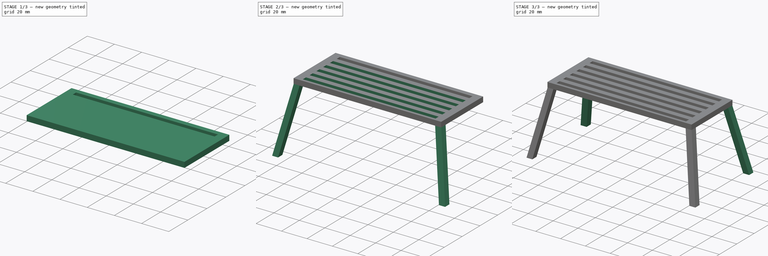
[diagram: build sequence overview — one tinted view per stage of 3, left to right]
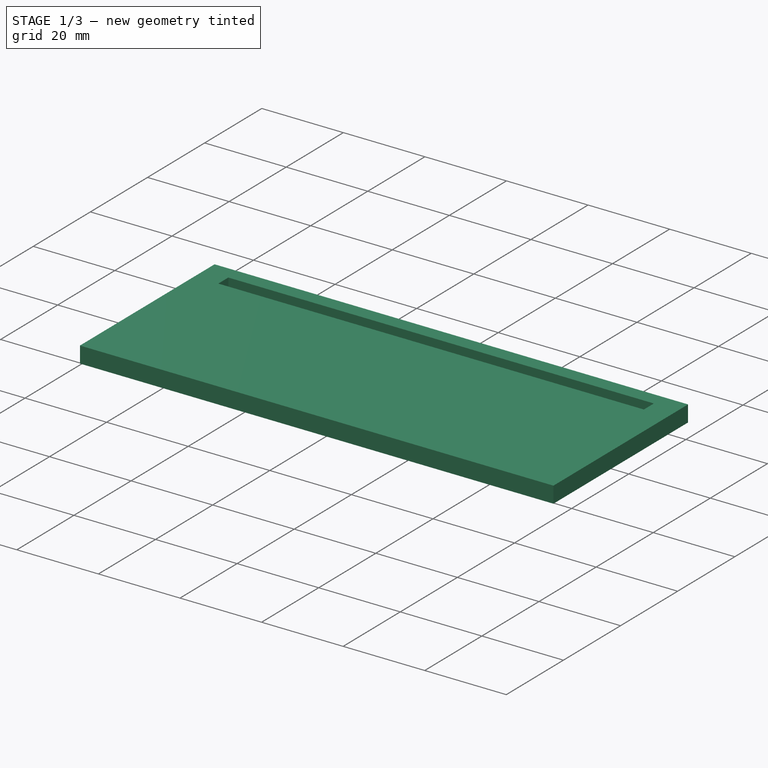
[diagram: stage 1 of 3 — iso view after this stage's code; geometry added in this stage tinted green]
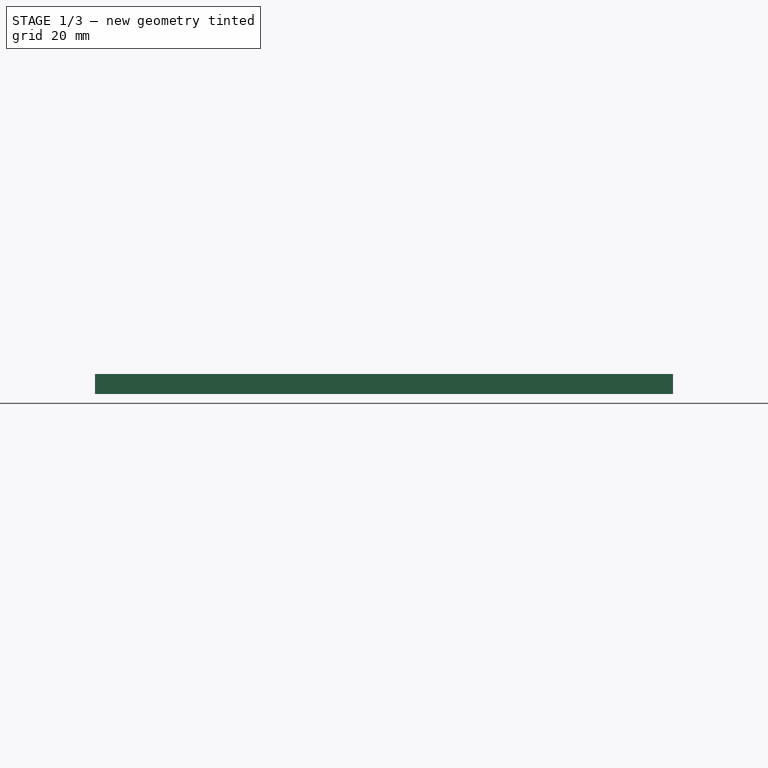
[diagram: stage 1 of 3 — front view after this stage's code; geometry added in this stage tinted green]
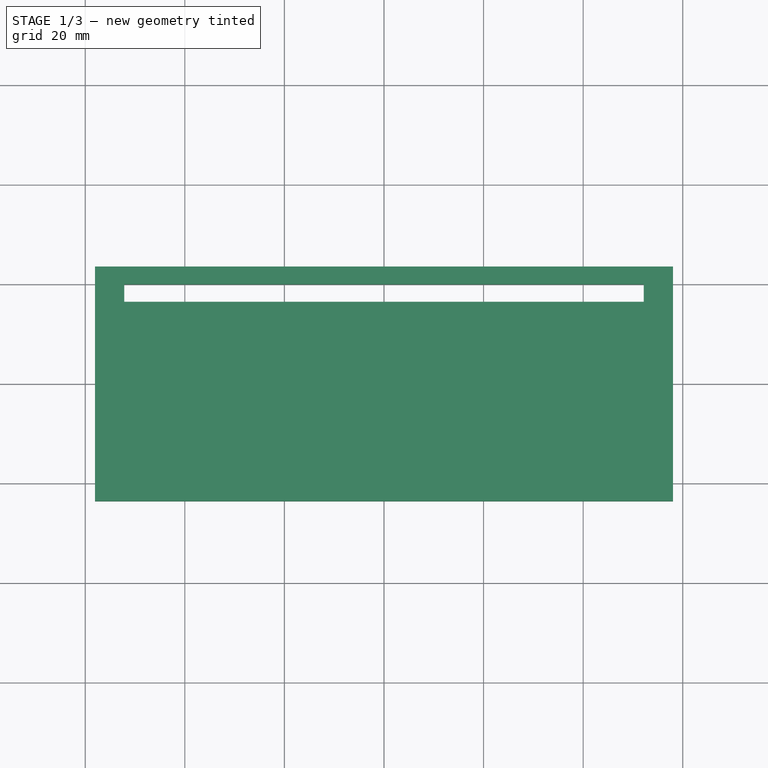
[diagram: stage 1 of 3 — top view after this stage's code; geometry added in this stage tinted green]
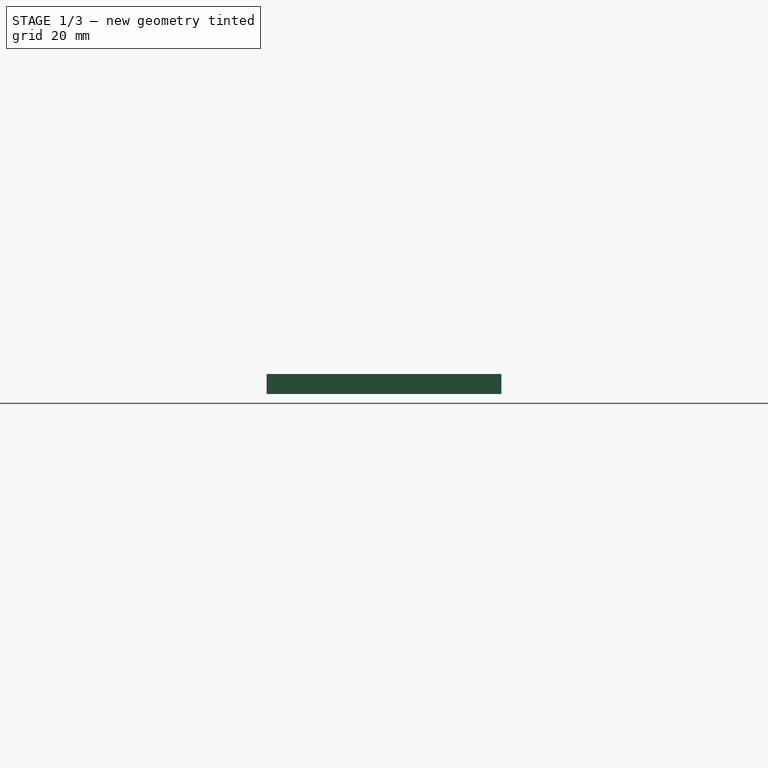
[diagram: stage 1 of 3 — right view after this stage's code; geometry added in this stage tinted green]
FCSTD DOCUMENT  (FreeCAD 0.21R33771 (Git))
Label: skamejka
License: All rights reserved
LicenseURL: https://en.wikipedia.org/wiki/All_rights_reserved
objects: Sketcher::SketchObject×10, PartDesign::AdditiveLoft×4, PartDesign::Pad×1, PartDesign::Pocket×1, PartDesign::LinearPattern×1, PartDesign::Body×1
note: 24 computed .brp shape members not serialized (recipe doc carries the construction recipe); baked Part::Feature solids carry a one-line shape summary decoded from their .brp

FEATURE [Sketcher::SketchObject] Sketch
  FullyConstrained = false
  MapMode = 5
  Support = -> [XY_Plane]
  sketch-geometry (5):
    g0: LineSegment StartX=-58.0414 StartY=-23.5669 StartZ=0 EndX=-58.0414 EndY=23.5669 EndZ=0
    g1: LineSegment StartX=-58.0414 StartY=23.5669 StartZ=0 EndX=58.0414 EndY=23.5669 EndZ=0
    g2: LineSegment StartX=58.0414 StartY=23.5669 StartZ=0 EndX=58.0414 EndY=-23.5669 EndZ=0
    g3: LineSegment StartX=58.0414 StartY=-23.5669 StartZ=0 EndX=-58.0414 EndY=-23.5669 EndZ=0
    g4: GeomPoint X=0 Y=0 Z=0
  constraints (10):
    c: Coincident(g0,g1)
    c: Coincident(g1,g2)
    c: Coincident(g2,g3)
    c: Coincident(g3,g0)
    c: Horizontal(g1)
    c: Horizontal(g3)
    c: Vertical(g0)
    c: Vertical(g2)
    c: Symmetric(g1,g0,g4)
    c: Coincident(g4,g-1)
FEATURE [PartDesign::Pad] Pad
  Direction = (0,0,1)
  Length = 4
  Length2 = 10
  Profile = -> Sketch
  ReferenceAxis = -> Sketch [N_Axis]
  Type = 0
FEATURE [Sketcher::SketchObject] Sketch001
  FullyConstrained = false
  MapMode = 5
  Placement = pos=(0,0,4) rot=(0,0,1;0rad)
  Support = -> [Pad]
  sketch-geometry (5):
    g0: LineSegment StartX=-52.1679 StartY=19.9975 StartZ=0 EndX=-52.1679 EndY=16.4943 EndZ=0
    g1: LineSegment StartX=-52.1679 StartY=16.4943 StartZ=0 EndX=52.1679 EndY=16.4943 EndZ=0
    g2: LineSegment StartX=52.1679 StartY=16.4943 StartZ=0 EndX=52.1679 EndY=19.9975 EndZ=0
    g3: LineSegment StartX=52.1679 StartY=19.9975 StartZ=0 EndX=-52.1679 EndY=19.9975 EndZ=0
    g4: GeomPoint X=0 Y=18.2459 Z=0
  constraints (10):
    c: Coincident(g0,g1)
    c: Coincident(g1,g2)
    c: Coincident(g2,g3)
    c: Coincident(g3,g0)
    c: Horizontal(g1)
    c: Horizontal(g3)
    c: Vertical(g0)
    c: Vertical(g2)
    c: Symmetric(g1,g0,g4)
    c: PointOnObject(g4,g-2)
FEATURE [PartDesign::Pocket] Pocket
  BaseFeature = -> Pad
  Direction = (0,0,-1)
  Length = 9
  Length2 = 5
  Profile = -> Sketch001
  ReferenceAxis = -> Sketch001 [N_Axis]
  Type = 0
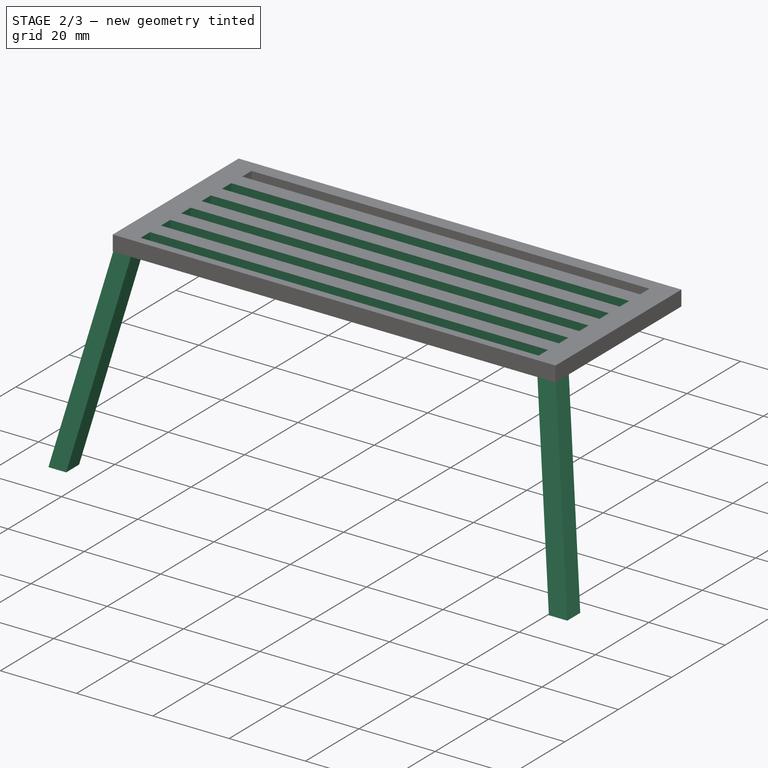
[diagram: stage 2 of 3 — iso view after this stage's code; geometry added in this stage tinted green]
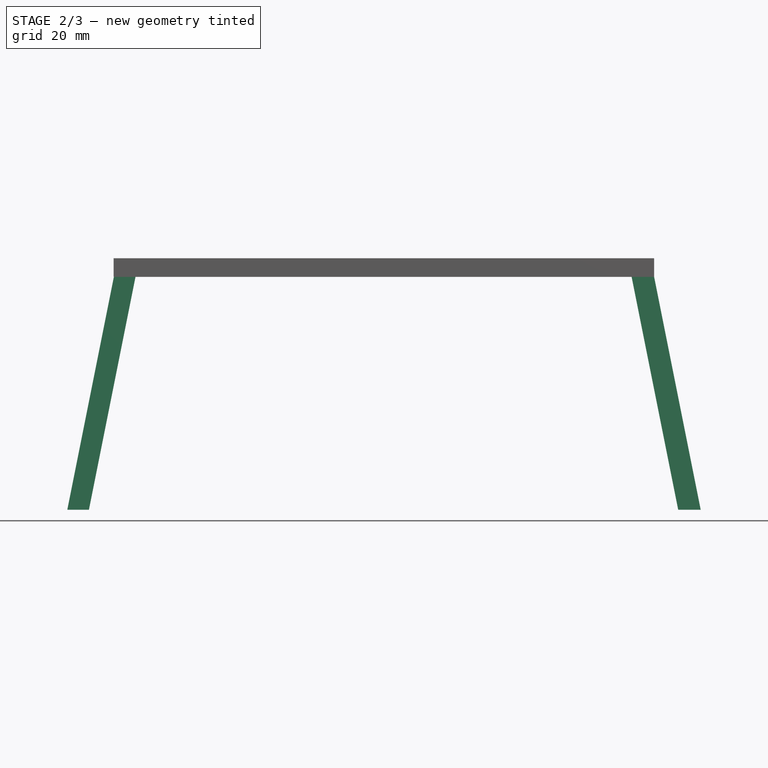
[diagram: stage 2 of 3 — front view after this stage's code; geometry added in this stage tinted green]
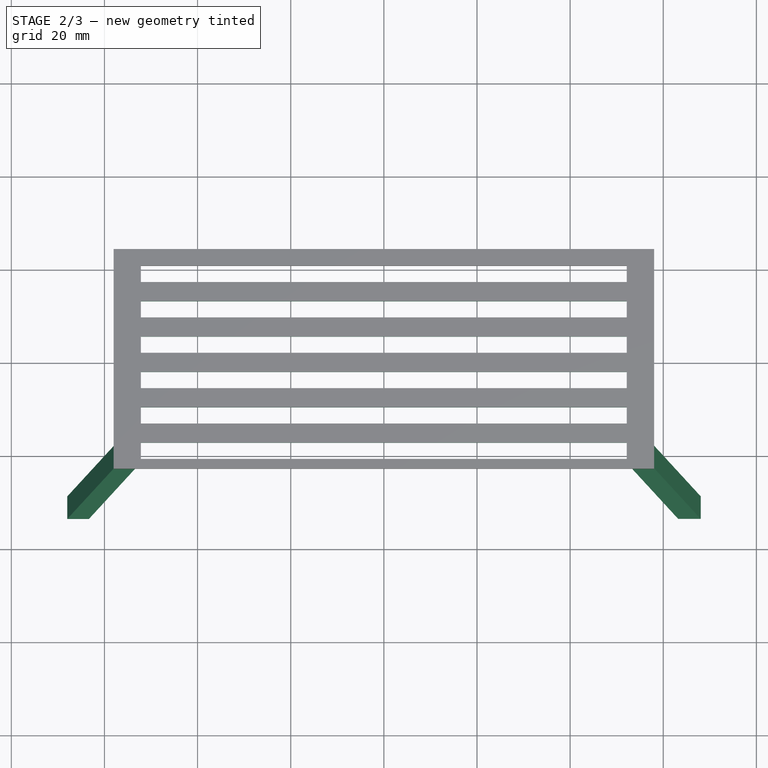
[diagram: stage 2 of 3 — top view after this stage's code; geometry added in this stage tinted green]
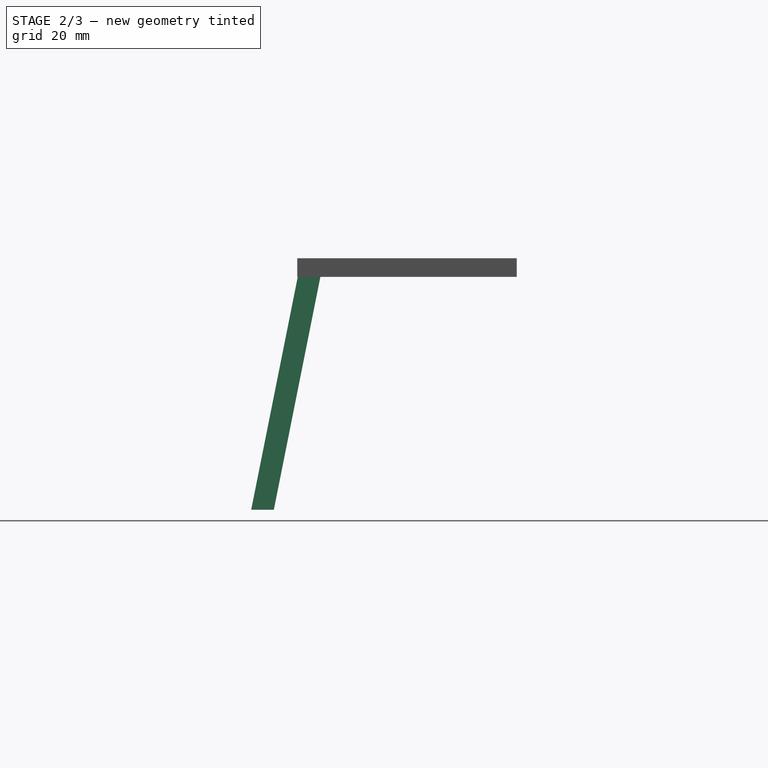
[diagram: stage 2 of 3 — right view after this stage's code; geometry added in this stage tinted green]
FEATURE [PartDesign::LinearPattern] LinearPattern
  BaseFeature = -> Pocket
  Direction = -> Y_Axis
  Length = 38
  Occurrences = 6
  Originals = -> [Pocket]
  Reversed = true
FEATURE [Sketcher::SketchObject] Sketch002
  FullyConstrained = false
  MapMode = 5
  Placement = pos=(0,0,0) rot=(1,0,0;3.14159rad)
  Support = -> [LinearPattern]
  sketch-geometry (4):
    g0: LineSegment StartX=-57.9834 StartY=23.4604 StartZ=0 EndX=-53.3312 EndY=23.4604 EndZ=0
    g1: LineSegment StartX=-53.3312 StartY=23.4604 StartZ=0 EndX=-53.3312 EndY=18.6163 EndZ=0
    g2: LineSegment StartX=-53.3312 StartY=18.6163 StartZ=0 EndX=-57.9834 EndY=18.6163 EndZ=0
    g3: LineSegment StartX=-57.9834 StartY=18.6163 StartZ=0 EndX=-57.9834 EndY=23.4604 EndZ=0
  constraints (8):
    c: Coincident(g0,g1)
    c: Coincident(g1,g2)
    c: Coincident(g2,g3)
    c: Coincident(g3,g0)
    c: Horizontal(g0)
    c: Horizontal(g2)
    c: Vertical(g1)
    c: Vertical(g3)
FEATURE [Sketcher::SketchObject] Sketch003
  AttachmentOffset = pos=(-10,10,50) rot=(0,0,1;0rad)
  FullyConstrained = false
  MapMode = 5
  Placement = pos=(-10,-10,-50) rot=(1,0,0;3.14159rad)
  Support = -> [LinearPattern]
  sketch-geometry (4):
    g0: LineSegment StartX=-57.9834 StartY=23.4604 StartZ=0 EndX=-53.3312 EndY=23.4604 EndZ=0
    g1: LineSegment StartX=-53.3312 StartY=23.4604 StartZ=0 EndX=-53.3312 EndY=18.6163 EndZ=0
    g2: LineSegment StartX=-53.3312 StartY=18.6163 StartZ=0 EndX=-57.9834 EndY=18.6163 EndZ=0
    g3: LineSegment StartX=-57.9834 StartY=18.6163 StartZ=0 EndX=-57.9834 EndY=23.4604 EndZ=0
  constraints (8):
    c: Coincident(g0,g1)
    c: Coincident(g1,g2)
    c: Coincident(g2,g3)
    c: Coincident(g3,g0)
    c: Horizontal(g0)
    c: Horizontal(g2)
    c: Vertical(g1)
    c: Vertical(g3)
FEATURE [PartDesign::AdditiveLoft] AdditiveLoft
  BaseFeature = -> LinearPattern
  Closed = false
  Profile = -> Sketch002
  Ruled = false
  Sections = -> [Sketch003]
FEATURE [Sketcher::SketchObject] Sketch004
  FullyConstrained = false
  MapMode = 5
  Placement = pos=(0,0,0) rot=(1,0,0;3.14159rad)
  Support = -> [AdditiveLoft]
  sketch-geometry (4):
    g0: LineSegment StartX=53.2075 StartY=23.446 StartZ=0 EndX=58.0475 EndY=23.446 EndZ=0
    g1: LineSegment StartX=58.0475 StartY=23.446 StartZ=0 EndX=58.0475 EndY=18.606 EndZ=0
    g2: LineSegment StartX=58.0475 StartY=18.606 StartZ=0 EndX=53.2075 EndY=18.606 EndZ=0
    g3: LineSegment StartX=53.2075 StartY=18.606 StartZ=0 EndX=53.2075 EndY=23.446 EndZ=0
  constraints (10):
    c: Coincident(g0,g1)
    c: Coincident(g1,g2)
    c: Coincident(g2,g3)
    c: Coincident(g3,g0)
    c: Horizontal(g0)
    c: Horizontal(g2)
    c: Vertical(g1)
    c: Vertical(g3)
    c: Equal(g1,g0)
    c: DistanceY(g1,g1) = 4.84
FEATURE [Sketcher::SketchObject] Sketch005
  AttachmentOffset = pos=(10,10,50) rot=(0,0,1;0rad)
  FullyConstrained = false
  MapMode = 5
  Placement = pos=(10,-10,-50) rot=(1,0,0;3.14159rad)
  Support = -> [AdditiveLoft]
  sketch-geometry (4):
    g0: LineSegment StartX=53.2075 StartY=23.446 StartZ=0 EndX=58.0475 EndY=23.446 EndZ=0
    g1: LineSegment StartX=58.0475 StartY=23.446 StartZ=0 EndX=58.0475 EndY=18.606 EndZ=0
    g2: LineSegment StartX=58.0475 StartY=18.606 StartZ=0 EndX=53.2075 EndY=18.606 EndZ=0
    g3: LineSegment StartX=53.2075 StartY=18.606 StartZ=0 EndX=53.2075 EndY=23.446 EndZ=0
  constraints (10):
    c: Coincident(g0,g1)
    c: Coincident(g1,g2)
    c: Coincident(g2,g3)
    c: Coincident(g3,g0)
    c: Horizontal(g0)
    c: Horizontal(g2)
    c: Vertical(g1)
    c: Vertical(g3)
    c: Equal(g1,g0)
    c: DistanceY(g1,g1) = 4.84
FEATURE [PartDesign::AdditiveLoft] AdditiveLoft001
  BaseFeature = -> AdditiveLoft
  Closed = false
  Profile = -> Sketch004
  Ruled = false
  Sections = -> [Sketch005]
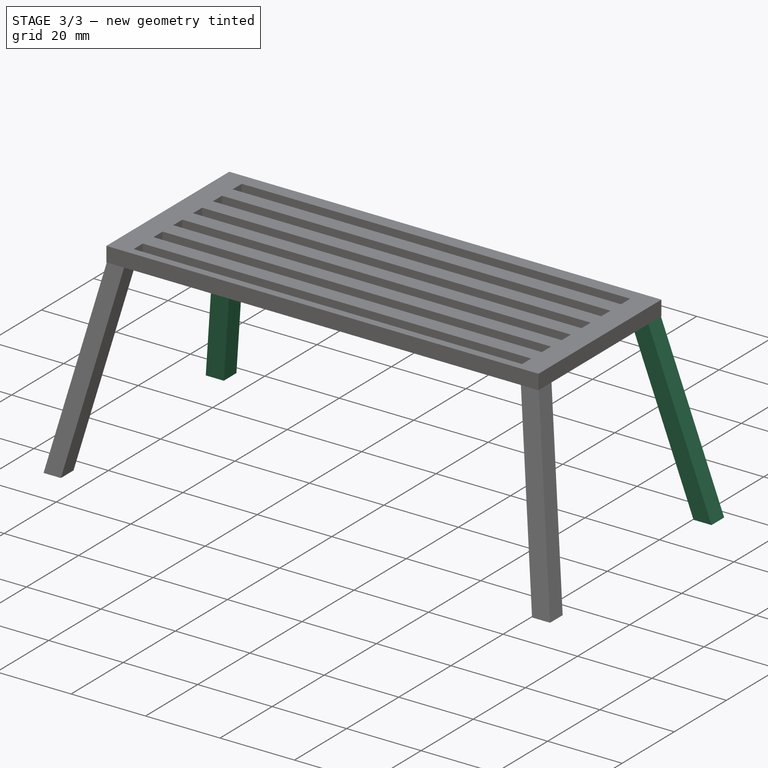
[diagram: stage 3 of 3 — iso view after this stage's code; geometry added in this stage tinted green]
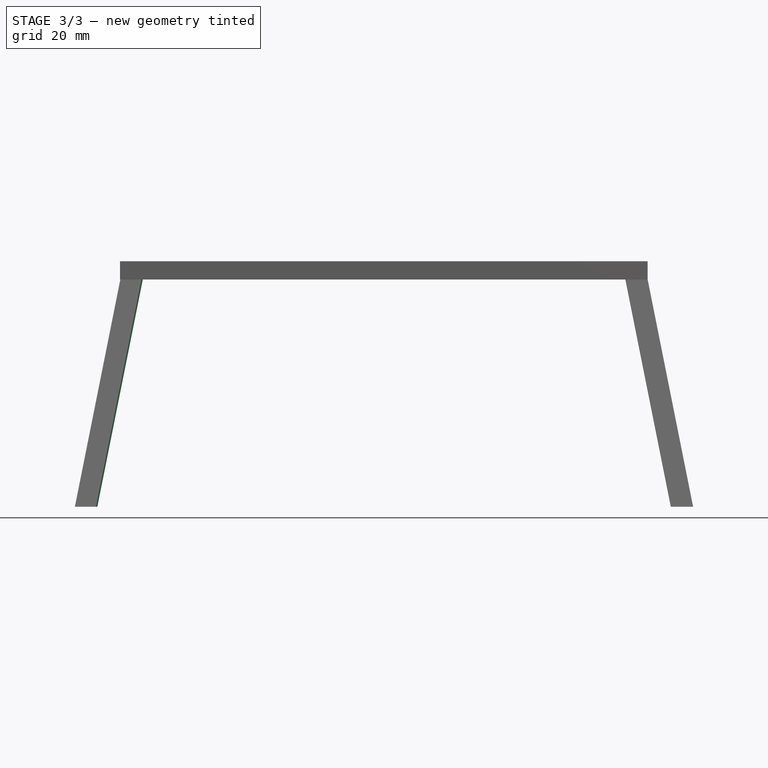
[diagram: stage 3 of 3 — front view after this stage's code; geometry added in this stage tinted green]
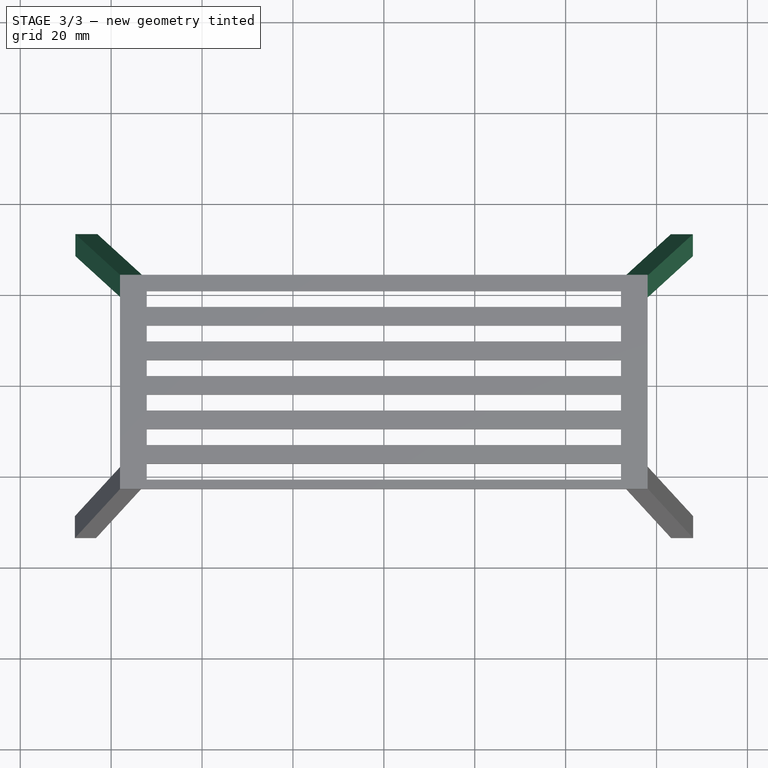
[diagram: stage 3 of 3 — top view after this stage's code; geometry added in this stage tinted green]
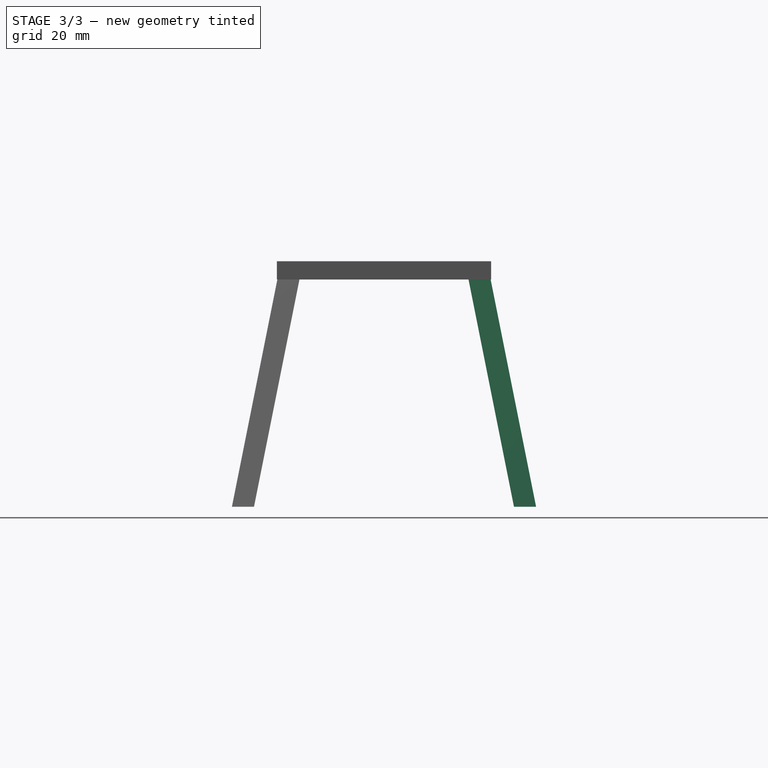
[diagram: stage 3 of 3 — right view after this stage's code; geometry added in this stage tinted green]
FEATURE [Sketcher::SketchObject] Sketch006
  FullyConstrained = false
  MapMode = 5
  Placement = pos=(0,0,0) rot=(1,0,0;3.14159rad)
  Support = -> [AdditiveLoft001]
  sketch-geometry (4):
    g0: LineSegment StartX=-57.8774 StartY=-18.6094 StartZ=0 EndX=-53.0374 EndY=-18.6094 EndZ=0
    g1: LineSegment StartX=-53.0374 StartY=-18.6094 StartZ=0 EndX=-53.0374 EndY=-23.4494 EndZ=0
    g2: LineSegment StartX=-53.0374 StartY=-23.4494 StartZ=0 EndX=-57.8774 EndY=-23.4494 EndZ=0
    g3: LineSegment StartX=-57.8774 StartY=-23.4494 StartZ=0 EndX=-57.8774 EndY=-18.6094 EndZ=0
  constraints (10):
    c: Coincident(g0,g1)
    c: Coincident(g1,g2)
    c: Coincident(g2,g3)
    c: Coincident(g3,g0)
    c: Horizontal(g0)
    c: Horizontal(g2)
    c: Vertical(g1)
    c: Vertical(g3)
    c: Equal(g1,g0)
    c: DistanceX(g0,g0) = 4.84
FEATURE [Sketcher::SketchObject] Sketch007
  AttachmentOffset = pos=(-10,-10,50) rot=(0,0,1;0rad)
  FullyConstrained = false
  MapMode = 5
  Placement = pos=(-10,10,-50) rot=(1,0,0;3.14159rad)
  Support = -> [AdditiveLoft001]
  sketch-geometry (4):
    g0: LineSegment StartX=-57.8774 StartY=-18.6094 StartZ=0 EndX=-53.0374 EndY=-18.6094 EndZ=0
    g1: LineSegment StartX=-53.0374 StartY=-18.6094 StartZ=0 EndX=-53.0374 EndY=-23.4494 EndZ=0
    g2: LineSegment StartX=-53.0374 StartY=-23.4494 StartZ=0 EndX=-57.8774 EndY=-23.4494 EndZ=0
    g3: LineSegment StartX=-57.8774 StartY=-23.4494 StartZ=0 EndX=-57.8774 EndY=-18.6094 EndZ=0
  constraints (10):
    c: Coincident(g0,g1)
    c: Coincident(g1,g2)
    c: Coincident(g2,g3)
    c: Coincident(g3,g0)
    c: Horizontal(g0)
    c: Horizontal(g2)
    c: Vertical(g1)
    c: Vertical(g3)
    c: Equal(g1,g0)
    c: DistanceX(g0,g0) = 4.84
FEATURE [PartDesign::AdditiveLoft] AdditiveLoft002
  BaseFeature = -> AdditiveLoft001
  Closed = false
  Profile = -> Sketch006
  Ruled = false
  Sections = -> [Sketch007]
FEATURE [Sketcher::SketchObject] Sketch008
  FullyConstrained = false
  MapMode = 5
  Placement = pos=(0,0,0) rot=(1,0,0;3.14159rad)
  Support = -> [AdditiveLoft002]
  sketch-geometry (4):
    g0: LineSegment StartX=53.1437 StartY=-18.5877 StartZ=0 EndX=57.9837 EndY=-18.5877 EndZ=0
    g1: LineSegment StartX=57.9837 StartY=-18.5877 StartZ=0 EndX=57.9837 EndY=-23.4277 EndZ=0
    g2: LineSegment StartX=57.9837 StartY=-23.4277 StartZ=0 EndX=53.1437 EndY=-23.4277 EndZ=0
    g3: LineSegment StartX=53.1437 StartY=-23.4277 StartZ=0 EndX=53.1437 EndY=-18.5877 EndZ=0
  constraints (10):
    c: Coincident(g0,g1)
    c: Coincident(g1,g2)
    c: Coincident(g2,g3)
    c: Coincident(g3,g0)
    c: Horizontal(g0)
    c: Horizontal(g2)
    c: Vertical(g1)
    c: Vertical(g3)
    c: Equal(g0,g3)
    c: DistanceX(g0,g0) = 4.84
FEATURE [Sketcher::SketchObject] Sketch009
  AttachmentOffset = pos=(10,-10,50) rot=(0,0,1;0rad)
  FullyConstrained = false
  MapMode = 5
  Placement = pos=(10,10,-50) rot=(1,0,0;3.14159rad)
  Support = -> [AdditiveLoft002]
  sketch-geometry (4):
    g0: LineSegment StartX=53.1437 StartY=-18.5877 StartZ=0 EndX=57.9837 EndY=-18.5877 EndZ=0
    g1: LineSegment StartX=57.9837 StartY=-18.5877 StartZ=0 EndX=57.9837 EndY=-23.4277 EndZ=0
    g2: LineSegment StartX=57.9837 StartY=-23.4277 StartZ=0 EndX=53.1437 EndY=-23.4277 EndZ=0
    g3: LineSegment StartX=53.1437 StartY=-23.4277 StartZ=0 EndX=53.1437 EndY=-18.5877 EndZ=0
  constraints (10):
    c: Coincident(g0,g1)
    c: Coincident(g1,g2)
    c: Coincident(g2,g3)
    c: Coincident(g3,g0)
    c: Horizontal(g0)
    c: Horizontal(g2)
    c: Vertical(g1)
    c: Vertical(g3)
    c: Equal(g0,g3)
    c: DistanceX(g0,g0) = 4.84
FEATURE [PartDesign::AdditiveLoft] AdditiveLoft003
  BaseFeature = -> AdditiveLoft002
  Closed = false
  Profile = -> Sketch008
  Ruled = false
  Sections = -> [Sketch009]
FEATURE [PartDesign::Body] Body
  Group = -> [Sketch,Pad,Sketch001,Pocket,LinearPattern,Sketch002,Sketch003,AdditiveLoft,Sketch004,Sketch005,AdditiveLoft001,Sketch006,Sketch007,AdditiveLoft002,Sketch008,Sketch009,AdditiveLoft003]
  Origin = -> Origin
  Tip = -> AdditiveLoft003
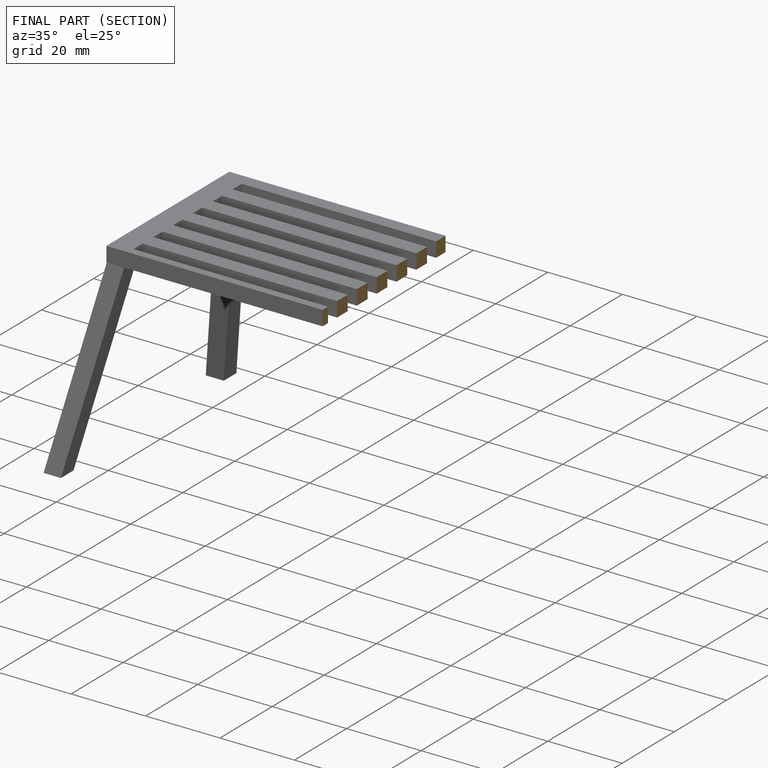
[diagram: finished part — half-section view (interior)]
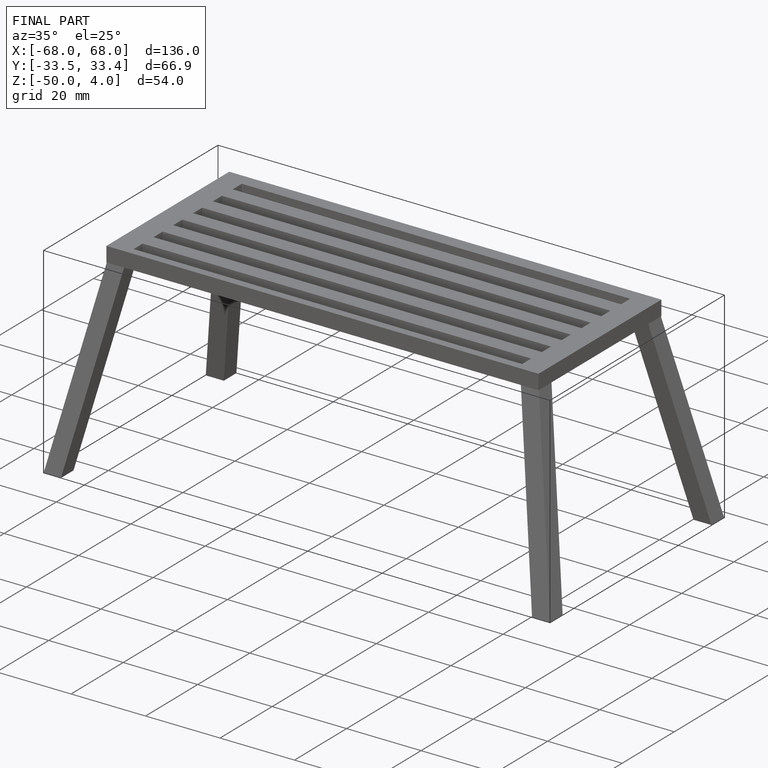
[diagram: finished part — iso view with bounding-box wireframe]
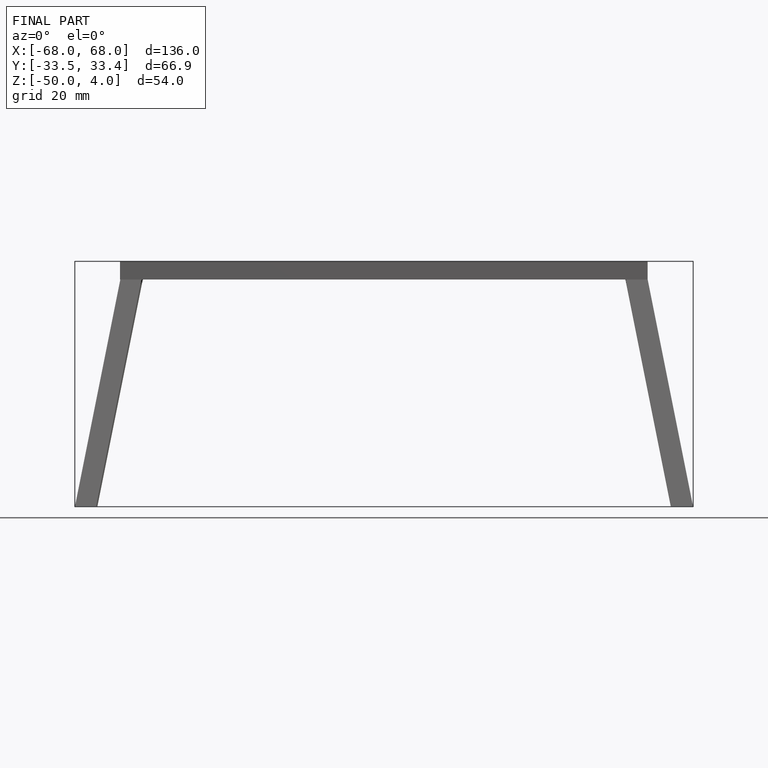
[diagram: finished part — front view with bounding-box wireframe]
